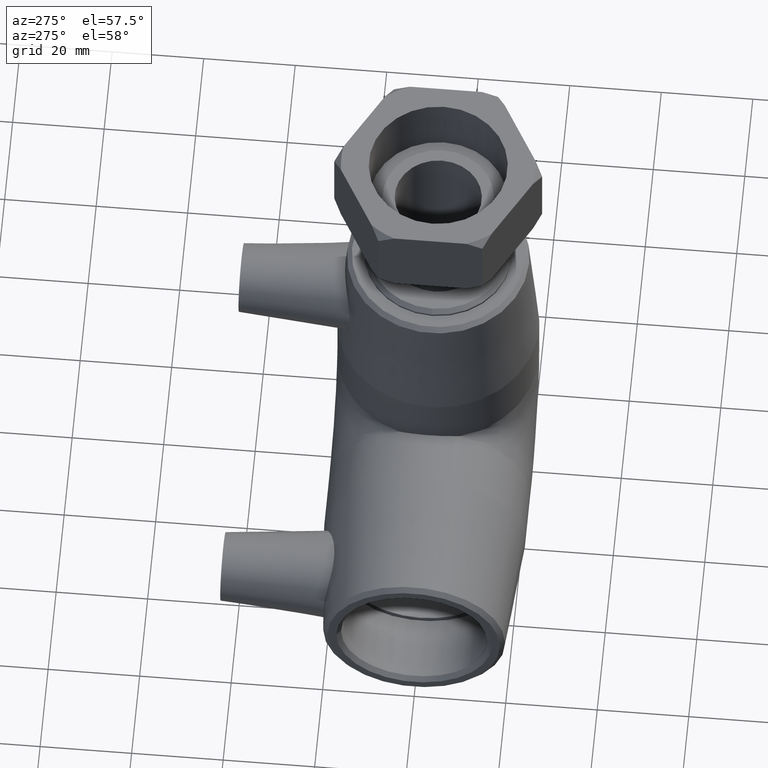
[diagram: clean part render]
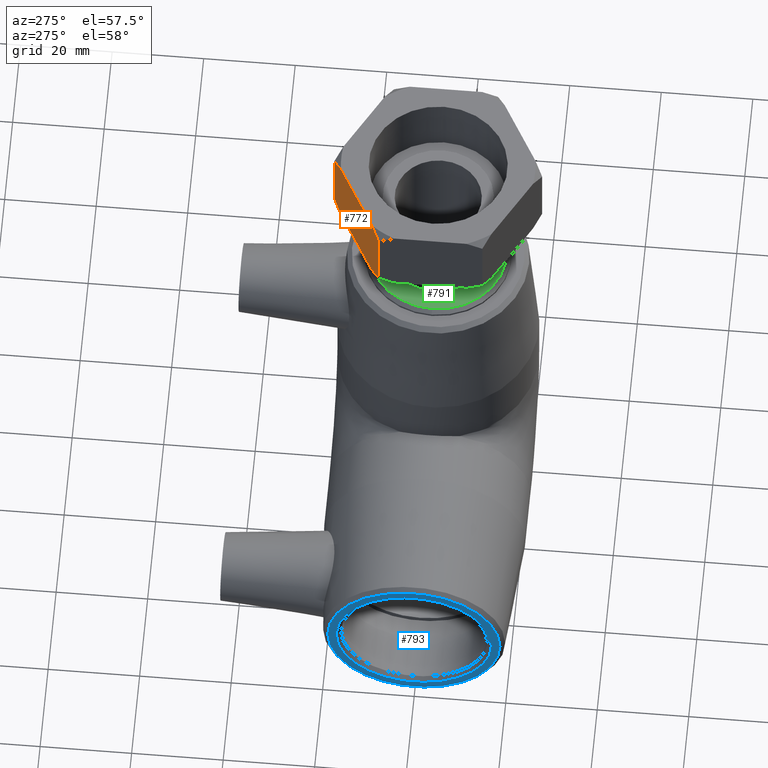
[diagram: same view with three faces highlighted in distinct colors, each labeled with its STEP entity id]
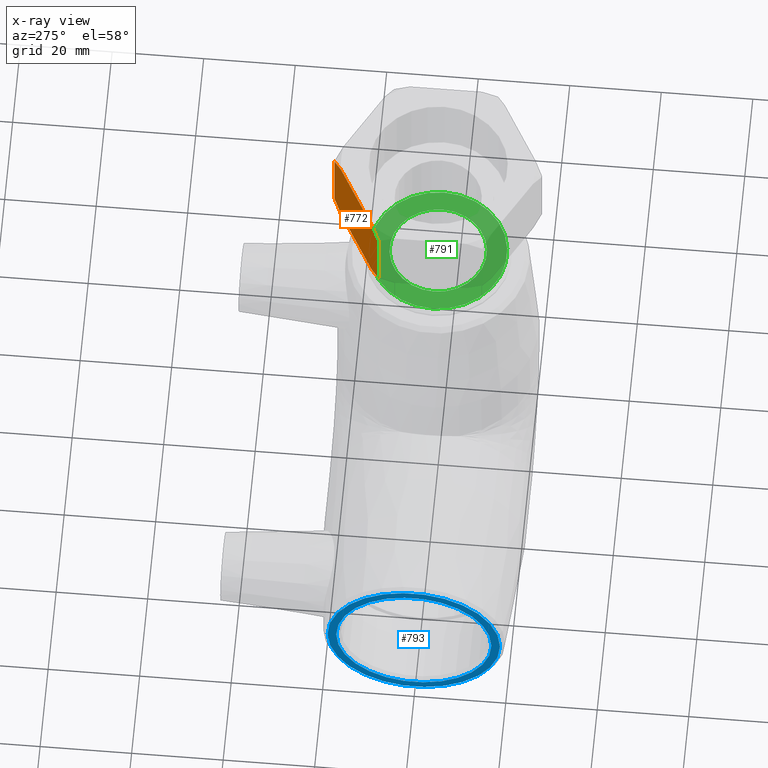
[diagram: x-ray of the same camera — body ghosted, the three highlighted faces saturated]
A machine part, auxiliary view with three faces highlighted in distinct colors.
The next image is the same camera in x-ray (body ghosted, the three faces saturated) — at least one of them is partly hidden behind the body in this view.
Their STEP definitions:

[orange] entity #772 — the highlighted planar face has unit normal (-0.5, 0.866, 0).
#27=LINE('',#1259,#45);
#29=LINE('',#1276,#47);
#30=LINE('',#1282,#48);
#31=LINE('',#1290,#49);
#45=VECTOR('',#972,14.9709);
#47=VECTOR('',#976,14.9709);
#48=VECTOR('',#977,15.8123662230705);
#49=VECTOR('',#978,15.8123662230704);
#67=(
BOUNDED_CURVE()
B_SPLINE_CURVE(2,(#1272,#1273,#1274),.UNSPECIFIED.,.F.,.F.)
B_SPLINE_CURVE_WITH_KNOTS((3,3),(0.,0.377184116175003),.UNSPECIFIED.)
CURVE()
GEOMETRIC_REPRESENTATION_ITEM()
RATIONAL_B_SPLINE_CURVE((1.,1.00310458904689,1.))
REPRESENTATION_ITEM('')
);
#68=(
BOUNDED_CURVE()
B_SPLINE_CURVE(2,(#1278,#1279,#1280),.UNSPECIFIED.,.F.,.F.)
B_SPLINE_CURVE_WITH_KNOTS((3,3),(0.,0.377184116175004),.UNSPECIFIED.)
CURVE()
GEOMETRIC_REPRESENTATION_ITEM()
RATIONAL_B_SPLINE_CURVE((1.,1.00310458904737,1.))
REPRESENTATION_ITEM('')
);
#69=(
BOUNDED_CURVE()
B_SPLINE_CURVE(2,(#1283,#1284,#1285),.UNSPECIFIED.,.F.,.F.)
B_SPLINE_CURVE_WITH_KNOTS((3,3),(0.,0.377184116175004),.UNSPECIFIED.)
CURVE()
GEOMETRIC_REPRESENTATION_ITEM()
RATIONAL_B_SPLINE_CURVE((1.,1.00310458904753,1.))
REPRESENTATION_ITEM('')
);
#70=(
BOUNDED_CURVE()
B_SPLINE_CURVE(2,(#1287,#1288,#1289),.UNSPECIFIED.,.F.,.F.)
B_SPLINE_CURVE_WITH_KNOTS((3,3),(0.,0.377184116175004),.UNSPECIFIED.)
CURVE()
GEOMETRIC_REPRESENTATION_ITEM()
RATIONAL_B_SPLINE_CURVE((1.,1.00310458904738,1.))
REPRESENTATION_ITEM('')
);
#98=PLANE('',#840);
#165=FACE_OUTER_BOUND('',#229,.T.);
#229=EDGE_LOOP('',(#580,#581,#582,#583,#584,#585,#586,#587));
#394=VERTEX_POINT('',#1254);
#395=VERTEX_POINT('',#1258);
#398=VERTEX_POINT('',#1270);
#399=VERTEX_POINT('',#1271);
#400=VERTEX_POINT('',#1275);
#401=VERTEX_POINT('',#1277);
#402=VERTEX_POINT('',#1281);
#403=VERTEX_POINT('',#1286);
#474=EDGE_CURVE('',#395,#394,#27,.T.);
#478=EDGE_CURVE('',#398,#399,#67,.T.);
#479=EDGE_CURVE('',#400,#398,#29,.T.);
#480=EDGE_CURVE('',#401,#400,#68,.T.);
#481=EDGE_CURVE('',#402,#401,#30,.T.);
#482=EDGE_CURVE('',#395,#402,#69,.T.);
#483=EDGE_CURVE('',#403,#394,#70,.T.);
#484=EDGE_CURVE('',#399,#403,#31,.T.);
#580=ORIENTED_EDGE('',*,*,#478,.F.);
#581=ORIENTED_EDGE('',*,*,#479,.F.);
#582=ORIENTED_EDGE('',*,*,#480,.F.);
#583=ORIENTED_EDGE('',*,*,#481,.F.);
#584=ORIENTED_EDGE('',*,*,#482,.F.);
#585=ORIENTED_EDGE('',*,*,#474,.T.);
#586=ORIENTED_EDGE('',*,*,#483,.F.);
#587=ORIENTED_EDGE('',*,*,#484,.F.);
#772=ADVANCED_FACE('',(#165),#98,.T.);
#840=AXIS2_PLACEMENT_3D('',#1269,#974,#975);
#972=DIRECTION('',(2.548052843402E-16,0.,1.));
#974=DIRECTION('center_axis',(-0.500000000000001,0.866025403784438,1.274026421701E-16));
#975=DIRECTION('ref_axis',(0.866025403784438,0.500000000000001,0.));
#976=DIRECTION('',(2.548052843402E-16,0.,1.));
#977=DIRECTION('',(0.866025403784438,0.500000000000001,-2.2066784925713E-16));
#978=DIRECTION('',(-0.866025403784438,-0.500000000000001,2.2066784925713E-16));
#1254=CARTESIAN_POINT('',(-19.6745816295258,11.359125,95.48545));
#1258=CARTESIAN_POINT('',(-19.6745816295258,11.359125,80.51455));
#1259=CARTESIAN_POINT('',(-19.6745816295258,11.359125,88.));
#1269=CARTESIAN_POINT('Origin',(-19.6745816295258,11.359125,97.));
#1270=CARTESIAN_POINT('',(9.49378847142019E-15,22.71825,95.48545));
#1271=CARTESIAN_POINT('',(-2.99033539320192,20.9917790557676,97.));
#1272=CARTESIAN_POINT('Ctrl Pts',(1.38920018005258E-14,22.71825,95.48545));
#1273=CARTESIAN_POINT('Ctrl Pts',(-1.54672520338026,21.825247787466,96.378452212534));
#1274=CARTESIAN_POINT('Ctrl Pts',(-2.99033539320187,20.9917790557676,97.));
#1275=CARTESIAN_POINT('',(4.56903650716516E-15,22.71825,80.51455));
#1276=CARTESIAN_POINT('',(7.7715611723761E-15,22.71825,88.));
#1277=CARTESIAN_POINT('',(-2.9903353932019,20.9917790557676,79.));
#1278=CARTESIAN_POINT('Ctrl Pts',(-2.9903353932019,20.9917790557676,79.));
#1279=CARTESIAN_POINT('Ctrl Pts',(-1.54672520338032,21.825247787466,79.621547787466));
#1280=CARTESIAN_POINT('Ctrl Pts',(-3.95334051281295E-15,22.71825,80.51455));
#1281=CARTESIAN_POINT('',(-16.6842462363239,13.0855959442324,79.));
#1282=CARTESIAN_POINT('',(-18.7316299721444,11.903538393222,79.));
#1283=CARTESIAN_POINT('Ctrl Pts',(-19.6745816295258,11.359125,80.51455));
#1284=CARTESIAN_POINT('Ctrl Pts',(-18.1278564261455,12.252127212534,79.621547787466));
#1285=CARTESIAN_POINT('Ctrl Pts',(-16.6842462363239,13.0855959442324,79.));
#1286=CARTESIAN_POINT('',(-16.6842462363239,13.0855959442324,97.));
#1287=CARTESIAN_POINT('Ctrl Pts',(-16.6842462363239,13.0855959442324,97.));
#1288=CARTESIAN_POINT('Ctrl Pts',(-18.1278564261456,12.252127212534,96.378452212534));
#1289=CARTESIAN_POINT('Ctrl Pts',(-19.6745816295258,11.359125,95.48545));
#1290=CARTESIAN_POINT('',(-23.2752799721444,9.28026084261852,97.));

[blue] entity #793 — the highlighted planar face has unit normal (-1, 0, 0).
#104=PLANE('',#881);
#126=FACE_BOUND('',#257,.T.);
#186=FACE_OUTER_BOUND('',#256,.T.);
#256=EDGE_LOOP('',(#674));
#257=EDGE_LOOP('',(#675));
#345=CIRCLE('',#880,16.96);
#346=CIRCLE('',#882,18.84);
#421=VERTEX_POINT('',#1376);
#422=VERTEX_POINT('',#1379);
#517=EDGE_CURVE('',#421,#421,#345,.T.);
#518=EDGE_CURVE('',#422,#422,#346,.T.);
#674=ORIENTED_EDGE('',*,*,#518,.F.);
#675=ORIENTED_EDGE('',*,*,#517,.F.);
#793=ADVANCED_FACE('',(#186,#126),#104,.T.);
#880=AXIS2_PLACEMENT_3D('',#1377,#1062,#1063);
#881=AXIS2_PLACEMENT_3D('',#1378,#1064,#1065);
#882=AXIS2_PLACEMENT_3D('',#1380,#1066,#1067);
#1062=DIRECTION('center_axis',(-1.,2.27504718160893E-18,0.));
#1063=DIRECTION('ref_axis',(-2.27504718160893E-18,-1.,0.));
#1064=DIRECTION('center_axis',(-1.,2.27504718160893E-18,0.));
#1065=DIRECTION('ref_axis',(0.,0.,1.));
#1066=DIRECTION('center_axis',(1.,-2.27504718160893E-18,0.));
#1067=DIRECTION('ref_axis',(-2.27504718160893E-18,-1.,0.));
#1376=CARTESIAN_POINT('',(-61.,16.96,-2.07700097135391E-15));
#1377=CARTESIAN_POINT('Origin',(-61.,0.,0.));
#1378=CARTESIAN_POINT('Origin',(-61.,19.8,0.));
#1379=CARTESIAN_POINT('',(-61.,18.84,2.30723456959361E-15));
#1380=CARTESIAN_POINT('Origin',(-61.,5.2963073470649E-33,0.));

[green] entity #791 — the highlighted planar face has unit normal (0, 0, 1).
#103=PLANE('',#876);
#124=FACE_BOUND('',#253,.T.);
#184=FACE_OUTER_BOUND('',#252,.T.);
#252=EDGE_LOOP('',(#670));
#253=EDGE_LOOP('',(#671));
#340=CIRCLE('',#872,15.04);
#343=CIRCLE('',#877,10.60185);
#416=VERTEX_POINT('',#1363);
#419=VERTEX_POINT('',#1371);
#512=EDGE_CURVE('',#416,#416,#340,.T.);
#515=EDGE_CURVE('',#419,#419,#343,.T.);
#670=ORIENTED_EDGE('',*,*,#512,.F.);
#671=ORIENTED_EDGE('',*,*,#515,.T.);
#791=ADVANCED_FACE('',(#184,#124),#103,.T.);
#872=AXIS2_PLACEMENT_3D('',#1364,#1046,#1047);
#876=AXIS2_PLACEMENT_3D('',#1370,#1054,#1055);
#877=AXIS2_PLACEMENT_3D('',#1372,#1056,#1057);
#1046=DIRECTION('center_axis',(-2.548052843402E-16,0.,-1.));
#1047=DIRECTION('ref_axis',(1.,0.,-2.548052843402E-16));
#1054=DIRECTION('center_axis',(2.548052843402E-16,0.,1.));
#1055=DIRECTION('ref_axis',(1.,0.,0.));
#1056=DIRECTION('center_axis',(-2.548052843402E-16,0.,-1.));
#1057=DIRECTION('ref_axis',(1.,0.,-2.548052843402E-16));
#1363=CARTESIAN_POINT('',(-15.04,1.84186878591762E-15,62.44));
#1364=CARTESIAN_POINT('Origin',(1.59100419542021E-14,0.,62.44));
#1370=CARTESIAN_POINT('Origin',(-16.,0.,62.44));
#1371=CARTESIAN_POINT('',(-10.60185,0.,62.44));
#1372=CARTESIAN_POINT('Origin',(1.59100419542021E-14,0.,62.44));